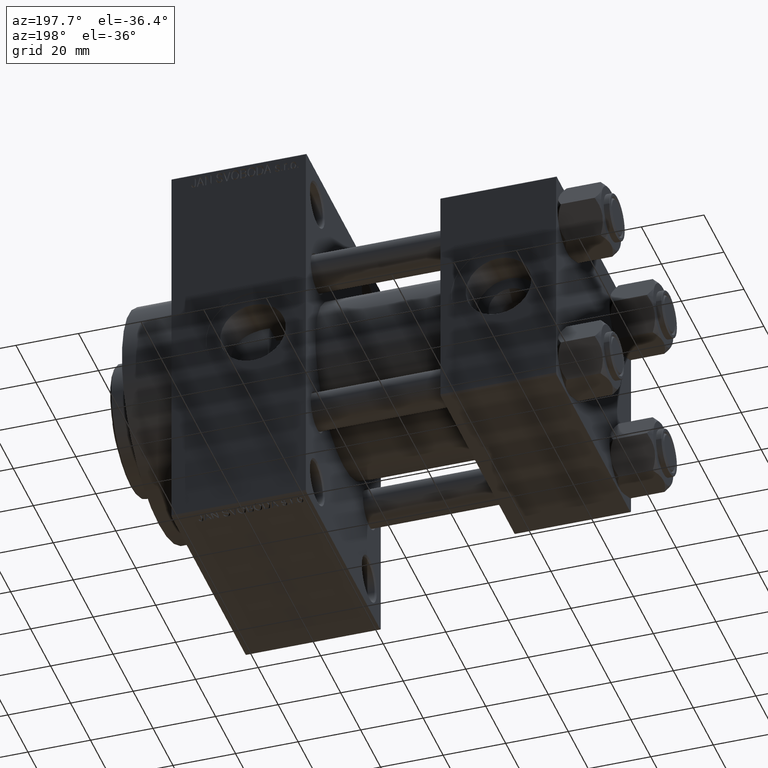
[diagram: clean part render]
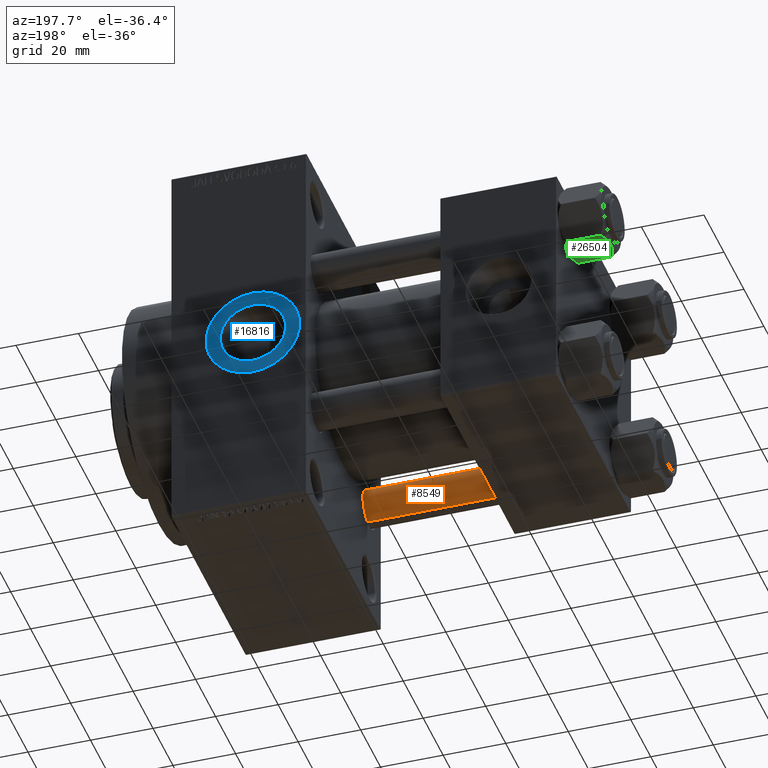
[diagram: same view with three faces highlighted in distinct colors, each labeled with its STEP entity id]
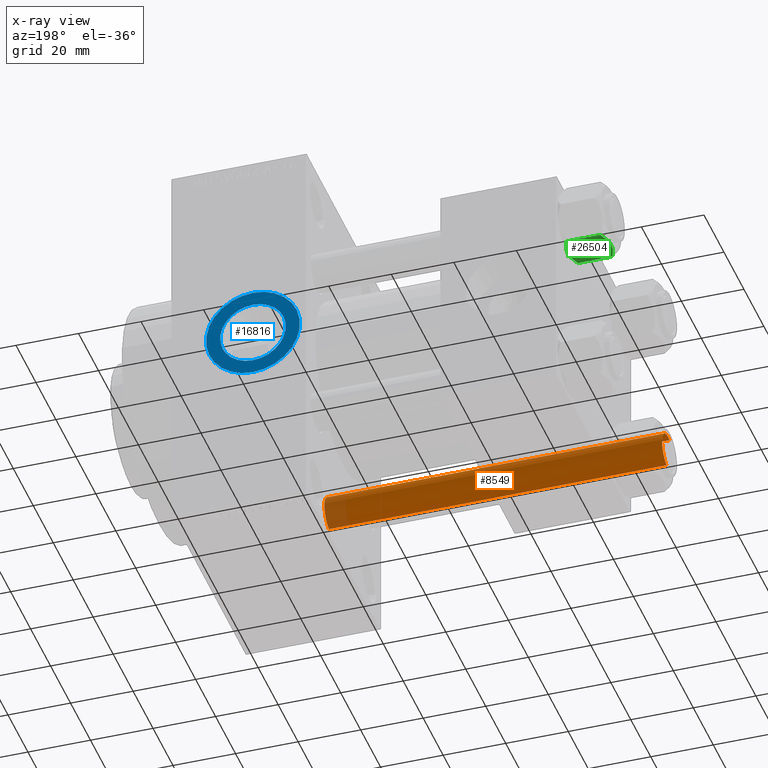
[diagram: x-ray of the same camera — body ghosted, the three highlighted faces saturated]
A machine part, auxiliary view with three faces highlighted in distinct colors.
The next image is the same camera in x-ray (body ghosted, the three faces saturated) — at least one of them is partly hidden behind the body in this view.
Their STEP definitions:

[orange] entity #8549 — the highlighted cylindrical surface (edge-blend (fillet) strip) has radius 6 mm, axis along (-1, 0, 0).
#1526 = EDGE_CURVE ( 'NONE', #16468, #17475, #39916, .T. ) ;
#1940 = DIRECTION ( 'NONE',  ( 1.000000000000000000, 0.000000000000000000, 0.000000000000000000 ) ) ;
#3175 = CARTESIAN_POINT ( 'NONE',  ( 6.000000000000000888, 7.347880794884120722E-16, 109.0000000000000000 ) ) ;
#3443 = VECTOR ( 'NONE', #5610, 1000.000000000000000 ) ;
#3560 = ORIENTED_EDGE ( 'NONE', *, *, #1526, .F. ) ;
#4741 = CYLINDRICAL_SURFACE ( 'NONE', #14659, 6.000000000000000888 ) ;
#5610 = DIRECTION ( 'NONE',  ( -0.000000000000000000, -0.000000000000000000, -1.000000000000000000 ) ) ;
#7546 = EDGE_LOOP ( 'NONE', ( #3560, #21343, #31444, #32119 ) ) ;
#8505 = VERTEX_POINT ( 'NONE', #15025 ) ;
#8549 = ADVANCED_FACE ( 'NONE', ( #37446 ), #4741, .T. ) ;
#10560 = AXIS2_PLACEMENT_3D ( 'NONE', #47140, #13513, #35703 ) ;
#11867 = CARTESIAN_POINT ( 'NONE',  ( 6.000000000000000888, 7.347880794884120722E-16, 0.4999999999999865663 ) ) ;
#12769 = LINE ( 'NONE', #24224, #3443 ) ;
#13513 = DIRECTION ( 'NONE',  ( 0.000000000000000000, 0.000000000000000000, -1.000000000000000000 ) ) ;
#14659 = AXIS2_PLACEMENT_3D ( 'NONE', #19294, #38011, #18917 ) ;
#15025 = CARTESIAN_POINT ( 'NONE',  ( -6.000000000000000888, 0.000000000000000000, 108.5000000000000142 ) ) ;
#16468 = VERTEX_POINT ( 'NONE', #21262 ) ;
#17475 = VERTEX_POINT ( 'NONE', #11867 ) ;
#18917 = DIRECTION ( 'NONE',  ( -1.000000000000000000, 0.000000000000000000, 0.000000000000000000 ) ) ;
#19294 = CARTESIAN_POINT ( 'NONE',  ( 0.000000000000000000, 0.000000000000000000, 109.0000000000000000 ) ) ;
#21262 = CARTESIAN_POINT ( 'NONE',  ( 6.000000000000000888, 7.347880794884120722E-16, 108.5000000000000142 ) ) ;
#21343 = ORIENTED_EDGE ( 'NONE', *, *, #27648, .T. ) ;
#21780 = DIRECTION ( 'NONE',  ( -0.000000000000000000, -0.000000000000000000, -1.000000000000000000 ) ) ;
#22548 = CIRCLE ( 'NONE', #24836, 6.000000000000000888 ) ;
#24224 = CARTESIAN_POINT ( 'NONE',  ( -6.000000000000000888, 0.000000000000000000, 109.0000000000000000 ) ) ;
#24836 = AXIS2_PLACEMENT_3D ( 'NONE', #34891, #45390, #1940 ) ;
#27648 = EDGE_CURVE ( 'NONE', #16468, #8505, #31144, .T. ) ;
#29592 = VERTEX_POINT ( 'NONE', #41835 ) ;
#31144 = CIRCLE ( 'NONE', #10560, 6.000000000000000888 ) ;
#31444 = ORIENTED_EDGE ( 'NONE', *, *, #42473, .T. ) ;
#32119 = ORIENTED_EDGE ( 'NONE', *, *, #39921, .T. ) ;
#34891 = CARTESIAN_POINT ( 'NONE',  ( 0.000000000000000000, 0.000000000000000000, 0.4999999999999865663 ) ) ;
#35703 = DIRECTION ( 'NONE',  ( 1.000000000000000000, 0.000000000000000000, 0.000000000000000000 ) ) ;
#37446 = FACE_OUTER_BOUND ( 'NONE', #7546, .T. ) ;
#38011 = DIRECTION ( 'NONE',  ( -0.000000000000000000, -0.000000000000000000, -1.000000000000000000 ) ) ;
#39916 = LINE ( 'NONE', #3175, #46690 ) ;
#39921 = EDGE_CURVE ( 'NONE', #29592, #17475, #22548, .T. ) ;
#41835 = CARTESIAN_POINT ( 'NONE',  ( -6.000000000000000888, 0.000000000000000000, 0.4999999999999865663 ) ) ;
#42473 = EDGE_CURVE ( 'NONE', #8505, #29592, #12769, .T. ) ;
#45390 = DIRECTION ( 'NONE',  ( -0.000000000000000000, -0.000000000000000000, 1.000000000000000000 ) ) ;
#46690 = VECTOR ( 'NONE', #21780, 1000.000000000000000 ) ;
#47140 = CARTESIAN_POINT ( 'NONE',  ( 0.000000000000000000, 0.000000000000000000, 108.5000000000000142 ) ) ;

[blue] entity #16816 — the highlighted planar face has unit normal (0, 1, 0).
#987 = AXIS2_PLACEMENT_3D ( 'NONE', #44652, #5487, #12411 ) ;
#2246 = DIRECTION ( 'NONE',  ( 0.000000000000000000, 1.000000000000000000, 0.000000000000000000 ) ) ;
#2836 = CIRCLE ( 'NONE', #21867, 10.48000000000000043 ) ;
#4239 = FACE_BOUND ( 'NONE', #27632, .T. ) ;
#5487 = DIRECTION ( 'NONE',  ( 0.000000000000000000, 1.000000000000000000, 0.000000000000000000 ) ) ;
#5810 = AXIS2_PLACEMENT_3D ( 'NONE', #20864, #2246, #9659 ) ;
#7856 = CIRCLE ( 'NONE', #987, 15.00000000000000000 ) ;
#9659 = DIRECTION ( 'NONE',  ( 0.000000000000000000, 0.000000000000000000, 1.000000000000000000 ) ) ;
#9881 = EDGE_CURVE ( 'NONE', #24691, #29170, #7856, .T. ) ;
#11143 = CIRCLE ( 'NONE', #5810, 10.48000000000000043 ) ;
#12411 = DIRECTION ( 'NONE',  ( 0.000000000000000000, 0.000000000000000000, 1.000000000000000000 ) ) ;
#15680 = CARTESIAN_POINT ( 'NONE',  ( 96.99999999999998579, 37.29999999999999716, -2.032879073410320814E-15 ) ) ;
#15863 = EDGE_LOOP ( 'NONE', ( #18817, #29527 ) ) ;
#16816 = ADVANCED_FACE ( 'NONE', ( #4239, #33358 ), #26877, .T. ) ;
#16924 = DIRECTION ( 'NONE',  ( 0.000000000000000000, 1.000000000000000000, 0.000000000000000000 ) ) ;
#17111 = AXIS2_PLACEMENT_3D ( 'NONE', #15680, #37883, #30694 ) ;
#17408 = DIRECTION ( 'NONE',  ( 0.000000000000000000, 0.000000000000000000, 1.000000000000000000 ) ) ;
#17744 = CARTESIAN_POINT ( 'NONE',  ( 96.99999999999998579, 37.29999999999999716, -15.00000000000000178 ) ) ;
#18016 = CIRCLE ( 'NONE', #31764, 15.00000000000000000 ) ;
#18817 = ORIENTED_EDGE ( 'NONE', *, *, #45690, .T. ) ;
#19630 = VERTEX_POINT ( 'NONE', #34923 ) ;
#20864 = CARTESIAN_POINT ( 'NONE',  ( 96.99999999999998579, 37.30000000000000426, -2.032879073410320814E-15 ) ) ;
#21332 = EDGE_CURVE ( 'NONE', #19630, #41438, #11143, .T. ) ;
#21637 = ORIENTED_EDGE ( 'NONE', *, *, #46262, .F. ) ;
#21867 = AXIS2_PLACEMENT_3D ( 'NONE', #29490, #33313, #33779 ) ;
#24691 = VERTEX_POINT ( 'NONE', #17744 ) ;
#26877 = PLANE ( 'NONE',  #17111 ) ;
#27632 = EDGE_LOOP ( 'NONE', ( #21637, #39547 ) ) ;
#27669 = CARTESIAN_POINT ( 'NONE',  ( 96.99999999999998579, 37.29999999999999716, -2.032879073410320814E-15 ) ) ;
#29170 = VERTEX_POINT ( 'NONE', #34259 ) ;
#29490 = CARTESIAN_POINT ( 'NONE',  ( 96.99999999999998579, 37.30000000000000426, -2.032879073410320814E-15 ) ) ;
#29527 = ORIENTED_EDGE ( 'NONE', *, *, #9881, .T. ) ;
#30694 = DIRECTION ( 'NONE',  ( 0.000000000000000000, -0.000000000000000000, 1.000000000000000000 ) ) ;
#31764 = AXIS2_PLACEMENT_3D ( 'NONE', #27669, #16924, #17408 ) ;
#33313 = DIRECTION ( 'NONE',  ( 0.000000000000000000, 1.000000000000000000, 0.000000000000000000 ) ) ;
#33358 = FACE_OUTER_BOUND ( 'NONE', #15863, .T. ) ;
#33779 = DIRECTION ( 'NONE',  ( 0.000000000000000000, 0.000000000000000000, 1.000000000000000000 ) ) ;
#34259 = CARTESIAN_POINT ( 'NONE',  ( 96.99999999999998579, 37.29999999999999716, 14.99999999999999822 ) ) ;
#34923 = CARTESIAN_POINT ( 'NONE',  ( 96.99999999999998579, 37.30000000000000426, -10.48000000000000220 ) ) ;
#37883 = DIRECTION ( 'NONE',  ( 0.000000000000000000, 1.000000000000000000, 0.000000000000000000 ) ) ;
#39547 = ORIENTED_EDGE ( 'NONE', *, *, #21332, .F. ) ;
#40695 = CARTESIAN_POINT ( 'NONE',  ( 96.99999999999998579, 37.30000000000000426, 10.47999999999999865 ) ) ;
#41438 = VERTEX_POINT ( 'NONE', #40695 ) ;
#44652 = CARTESIAN_POINT ( 'NONE',  ( 96.99999999999998579, 37.29999999999999716, -2.032879073410320814E-15 ) ) ;
#45690 = EDGE_CURVE ( 'NONE', #29170, #24691, #18016, .T. ) ;
#46262 = EDGE_CURVE ( 'NONE', #41438, #19630, #2836, .T. ) ;

[green] entity #26504 — the highlighted planar face has unit normal (0, 0, 1).
#943 = CARTESIAN_POINT ( 'NONE',  ( -5.809999999999997833, 10.06321519197518022, -12.44321519197518633 ) ) ;
#979 = DIRECTION ( 'NONE',  ( -0.000000000000000000, -0.000000000000000000, 1.000000000000000000 ) ) ;
#986 = CARTESIAN_POINT ( 'NONE',  ( -3.958929922320415962, 10.06321519197517844, -13.25786014976460159 ) ) ;
#1350 = CARTESIAN_POINT ( 'NONE',  ( 4.908816193182381937, 10.06321519197518022, -12.89380709538399472 ) ) ;
#4105 = B_SPLINE_CURVE_WITH_KNOTS ( 'NONE', 3,
 ( #26287, #40609, #22473, #986, #34169, #37509, #44911, #8387 ),
 .UNSPECIFIED., .F., .F.,
 ( 4, 2, 2, 4 ),
 ( 0.01467889604968878464, 0.01619420351931634416, 0.01770951098894390022, 0.02074012592819901579 ),
 .UNSPECIFIED. ) ;
#4931 = CARTESIAN_POINT ( 'NONE',  ( 0.000000000000000000, 10.06321519197518022, -14.00000000000000000 ) ) ;
#5171 = CARTESIAN_POINT ( 'NONE',  ( 0.5112014849988890663, 10.06321519197518022, -13.99019602057108713 ) ) ;
#6370 = CARTESIAN_POINT ( 'NONE',  ( 5.810000000000000497, 10.06321519197518022, -1.556784808024815892 ) ) ;
#6834 = CARTESIAN_POINT ( 'NONE',  ( 0.000000000000000000, 10.06321519197518022, 0.000000000000000000 ) ) ;
#8387 = CARTESIAN_POINT ( 'NONE',  ( 0.000000000000000000, 10.06321519197518022, -14.00000000000000000 ) ) ;
#9262 = CARTESIAN_POINT ( 'NONE',  ( 0.000000000000000000, 10.06321519197518022, 0.000000000000000000 ) ) ;
#9973 = CARTESIAN_POINT ( 'NONE',  ( -4.908816193182376608, 10.06321519197518199, -1.106192904616006167 ) ) ;
#10134 = VECTOR ( 'NONE', #19422, 1000.000000000000000 ) ;
#10413 = CARTESIAN_POINT ( 'NONE',  ( 3.474497094393252272, 10.06321519197518022, -0.5726960901042741359 ) ) ;
#12558 = CARTESIAN_POINT ( 'NONE',  ( 1.018274738099085530, 10.06321519197517844, -13.95177257919929126 ) ) ;
#12633 = CARTESIAN_POINT ( 'NONE',  ( 5.810000000000000497, 10.06321519197518022, -12.44321519197518455 ) ) ;
#13764 = CARTESIAN_POINT ( 'NONE',  ( 4.900668367960795635, 10.06321519197518199, -1.121556683709773239 ) ) ;
#13951 = EDGE_CURVE ( 'NONE', #20529, #31569, #24458, .T. ) ;
#14258 = PLANE ( 'NONE',  #19693 ) ;
#14463 = CARTESIAN_POINT ( 'NONE',  ( -5.809999999999997833, 10.06321519197518022, -1.556784808024814115 ) ) ;
#14489 = DIRECTION ( 'NONE',  ( 0.000000000000000000, -1.000000000000000000, 0.000000000000000000 ) ) ;
#15914 = CARTESIAN_POINT ( 'NONE',  ( 5.810000000000000497, 10.06321519197518022, -12.44321519197518455 ) ) ;
#17373 = ORIENTED_EDGE ( 'NONE', *, *, #20920, .F. ) ;
#18066 = CARTESIAN_POINT ( 'NONE',  ( -5.809999999999997833, 10.06321519197518022, -14.00000000000000000 ) ) ;
#19422 = DIRECTION ( 'NONE',  ( -0.000000000000000000, -0.000000000000000000, 1.000000000000000000 ) ) ;
#19428 = ORIENTED_EDGE ( 'NONE', *, *, #13951, .F. ) ;
#19493 = CARTESIAN_POINT ( 'NONE',  ( 1.772424303831123815, 10.06321519197518199, -13.86611290782776074 ) ) ;
#19693 = AXIS2_PLACEMENT_3D ( 'NONE', #18066, #14489, #29040 ) ;
#19729 = CARTESIAN_POINT ( 'NONE',  ( 2.508586450168039939, 10.06321519197518022, -13.70242473679676998 ) ) ;
#20228 = CARTESIAN_POINT ( 'NONE',  ( -0.2543996698847471039, 10.06321519197517844, 1.789568859311522647E-15 ) ) ;
#20529 = VERTEX_POINT ( 'NONE', #40558 ) ;
#20825 = VERTEX_POINT ( 'NONE', #20977 ) ;
#20920 = EDGE_CURVE ( 'NONE', #20825, #23865, #45072, .T. ) ;
#20977 = CARTESIAN_POINT ( 'NONE',  ( 0.000000000000000000, 10.06321519197518022, -14.00000000000000000 ) ) ;
#21958 = EDGE_CURVE ( 'NONE', #35417, #20529, #36650, .T. ) ;
#22446 = VECTOR ( 'NONE', #979, 1000.000000000000000 ) ;
#22473 = CARTESIAN_POINT ( 'NONE',  ( -4.900668367960791194, 10.06321519197518199, -12.87844331629023387 ) ) ;
#22597 = ORIENTED_EDGE ( 'NONE', *, *, #21958, .F. ) ;
#22938 = LINE ( 'NONE', #30095, #22446 ) ;
#23865 = VERTEX_POINT ( 'NONE', #12633 ) ;
#24458 = B_SPLINE_CURVE_WITH_KNOTS ( 'NONE', 3,
 ( #9262, #20228, #27877, #42442, #27634, #42198, #38860, #9973, #43142 ),
 .UNSPECIFIED., .F., .F.,
 ( 4, 2, 1, 2, 4 ),
 ( 0.02074012592819901579, 0.02149589804477577970, 0.02225167016135254361, 0.02376321439450607489, 0.02678630286081313400 ),
 .UNSPECIFIED. ) ;
#24964 = CARTESIAN_POINT ( 'NONE',  ( 2.013954290287966575, 10.06321519197518022, -0.1570111679759973733 ) ) ;
#26287 = CARTESIAN_POINT ( 'NONE',  ( -5.809999999999997833, 10.06321519197518022, -12.44321519197518633 ) ) ;
#26504 = ADVANCED_FACE ( 'NONE', ( #46959 ), #14258, .F. ) ;
#27634 = CARTESIAN_POINT ( 'NONE',  ( -1.772424303831120929, 10.06321519197518022, -0.1338870921722370433 ) ) ;
#27877 = CARTESIAN_POINT ( 'NONE',  ( -0.5112014849988875120, 10.06321519197518199, -0.009803979428912690947 ) ) ;
#29040 = DIRECTION ( 'NONE',  ( 0.000000000000000000, -0.000000000000000000, -1.000000000000000000 ) ) ;
#30095 = CARTESIAN_POINT ( 'NONE',  ( -5.809999999999997833, 10.06321519197518022, -14.00000000000000000 ) ) ;
#30169 = LINE ( 'NONE', #33997, #10134 ) ;
#31569 = VERTEX_POINT ( 'NONE', #14463 ) ;
#32348 = CARTESIAN_POINT ( 'NONE',  ( 5.810000000000000497, 10.06321519197518022, -1.556784808024815892 ) ) ;
#33931 = EDGE_CURVE ( 'NONE', #23865, #35417, #30169, .T. ) ;
#33997 = CARTESIAN_POINT ( 'NONE',  ( 5.810000000000000497, 10.06321519197518022, -14.00000000000000000 ) ) ;
#34060 = CARTESIAN_POINT ( 'NONE',  ( 3.960942496020604331, 10.06321519197518022, -13.28842716763896092 ) ) ;
#34169 = CARTESIAN_POINT ( 'NONE',  ( -3.474497094393251828, 10.06321519197518022, -13.42730390989572520 ) ) ;
#35317 = VERTEX_POINT ( 'NONE', #943 ) ;
#35417 = VERTEX_POINT ( 'NONE', #32348 ) ;
#35942 = EDGE_LOOP ( 'NONE', ( #46812, #45029, #19428, #22597, #46964, #17373 ) ) ;
#36650 = B_SPLINE_CURVE_WITH_KNOTS ( 'NONE', 3,
 ( #6370, #46930, #13764, #39299, #10413, #24964, #39527, #6834 ),
 .UNSPECIFIED., .F., .F.,
 ( 4, 2, 2, 4 ),
 ( 0.01467889604968878811, 0.01619420351931634416, 0.01770951098894390369, 0.02074012592819901579 ),
 .UNSPECIFIED. ) ;
#37509 = CARTESIAN_POINT ( 'NONE',  ( -2.013954290287964355, 10.06321519197518022, -13.84298883202399999 ) ) ;
#37987 = EDGE_CURVE ( 'NONE', #35317, #31569, #22938, .T. ) ;
#38347 = CARTESIAN_POINT ( 'NONE',  ( 0.2543996698847490467, 10.06321519197518199, -14.00000000000000000 ) ) ;
#38860 = CARTESIAN_POINT ( 'NONE',  ( -3.960942496020600778, 10.06321519197518199, -0.7115728323610410744 ) ) ;
#39070 = EDGE_CURVE ( 'NONE', #35317, #20825, #4105, .T. ) ;
#39299 = CARTESIAN_POINT ( 'NONE',  ( 3.958929922320420403, 10.06321519197517844, -0.7421398502353995230 ) ) ;
#39527 = CARTESIAN_POINT ( 'NONE',  ( 1.020132157807626561, 10.06321519197517844, 1.504330514323637599E-15 ) ) ;
#40558 = CARTESIAN_POINT ( 'NONE',  ( 0.000000000000000000, 10.06321519197518022, 0.000000000000000000 ) ) ;
#40609 = CARTESIAN_POINT ( 'NONE',  ( -5.359707691559671083, 10.06321519197517844, -12.66836134619534704 ) ) ;
#42198 = CARTESIAN_POINT ( 'NONE',  ( -2.508586450168038162, 10.06321519197518199, -0.2975752632032285794 ) ) ;
#42442 = CARTESIAN_POINT ( 'NONE',  ( -1.018274738099083310, 10.06321519197517667, -0.04822742080070820114 ) ) ;
#43142 = CARTESIAN_POINT ( 'NONE',  ( -5.809999999999997833, 10.06321519197518022, -1.556784808024814115 ) ) ;
#44911 = CARTESIAN_POINT ( 'NONE',  ( -1.020132157807624340, 10.06321519197517844, -14.00000000000000000 ) ) ;
#45029 = ORIENTED_EDGE ( 'NONE', *, *, #37987, .T. ) ;
#45072 = B_SPLINE_CURVE_WITH_KNOTS ( 'NONE', 3,
 ( #4931, #38347, #5171, #12558, #19493, #19729, #34060, #1350, #15914 ),
 .UNSPECIFIED., .F., .F.,
 ( 4, 2, 1, 2, 4 ),
 ( 0.02074012592819901579, 0.02149589804477577970, 0.02225167016135254361, 0.02376321439450607489, 0.02678630286081313400 ),
 .UNSPECIFIED. ) ;
#46812 = ORIENTED_EDGE ( 'NONE', *, *, #39070, .F. ) ;
#46930 = CARTESIAN_POINT ( 'NONE',  ( 5.359707691559672860, 10.06321519197517844, -1.331638653804651629 ) ) ;
#46959 = FACE_OUTER_BOUND ( 'NONE', #35942, .T. ) ;
#46964 = ORIENTED_EDGE ( 'NONE', *, *, #33931, .F. ) ;